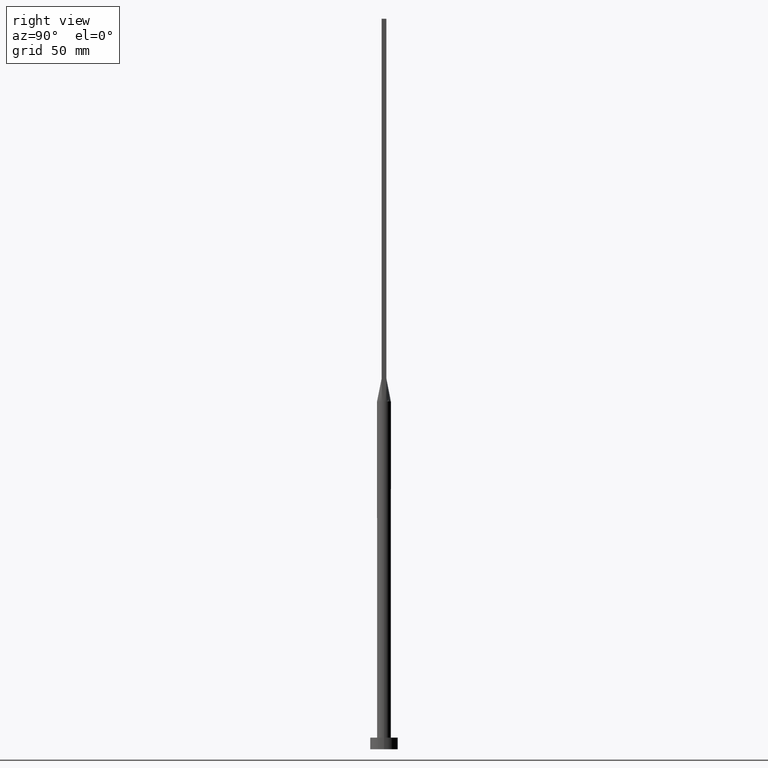
[diagram: clean part render]
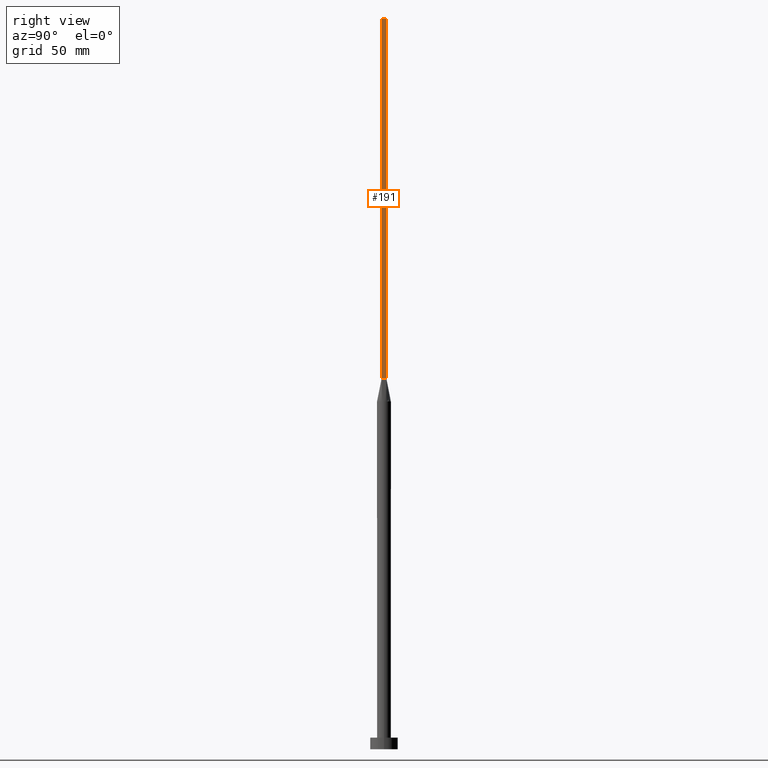
[diagram: same view with one face highlighted and labeled with its STEP entity id]
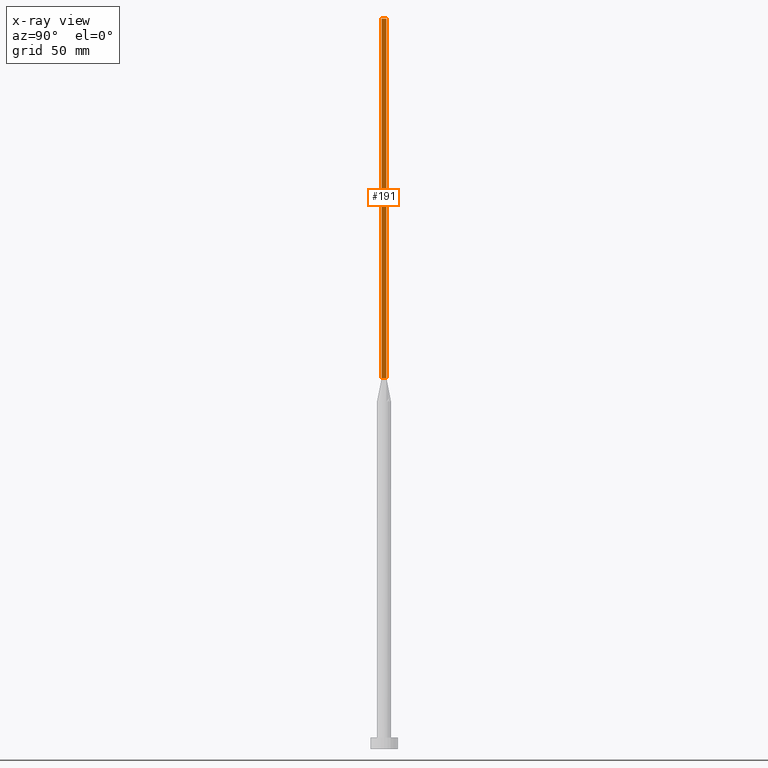
[diagram: x-ray of the same camera — body ghosted, the highlighted face saturated]
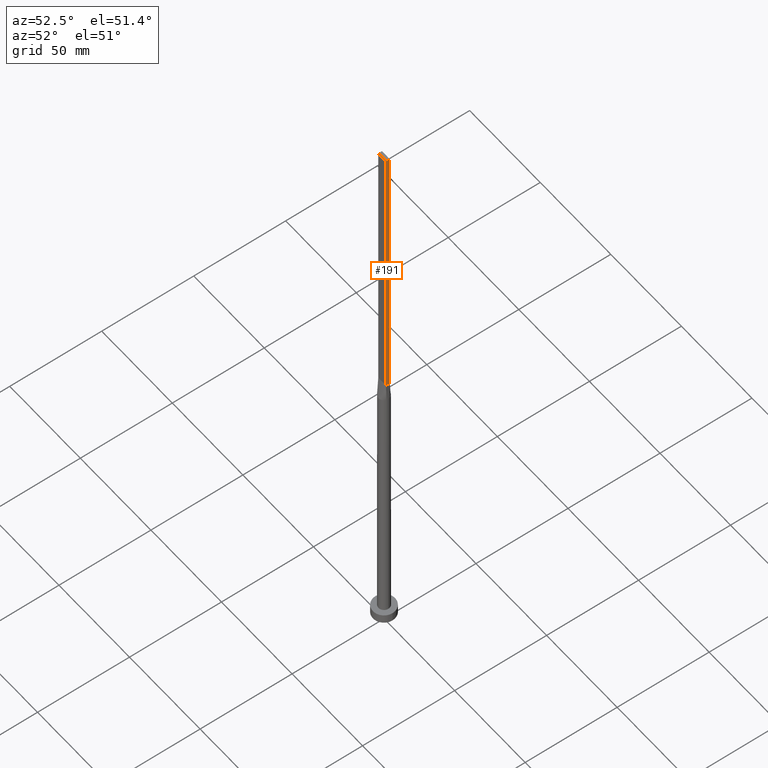
[diagram: same view with one face highlighted and labeled with its STEP entity id]
A machine part, right view. The second image highlights one B-rep face of the part: STEP entity #191.
The next image is the same camera in x-ray: the body ghosted, the highlighted face saturated — about 0% of this face is hidden behind the body in this view.
A second angle (auxiliary view) of the same face is appended — the face is thin or edge-on in the first view.
In plain terms, the highlighted planar face has unit normal (-1, -0, 0).
Its self-contained STEP definition (entity closure, byte-faithful):
#9 = DIRECTION ( 'NONE',  ( -0.000000000000000000, -0.000000000000000000, -1.000000000000000000 ) ) ;
#40 = VERTEX_POINT ( 'NONE', #121 ) ;
#49 = CARTESIAN_POINT ( 'NONE',  ( 2.750000000000000000, -0.9999999999999997780, 315.0000000000000000 ) ) ;
#62 = EDGE_LOOP ( 'NONE', ( #66, #439, #155, #193 ) ) ;
#64 = AXIS2_PLACEMENT_3D ( 'NONE', #241, #289, #428 ) ;
#66 = ORIENTED_EDGE ( 'NONE', *, *, #420, .T. ) ;
#121 = CARTESIAN_POINT ( 'NONE',  ( 2.749999999999999556, 1.000000000000000000, 160.0000000000000000 ) ) ;
#150 = VECTOR ( 'NONE', #221, 1000.000000000000000 ) ;
#154 = CARTESIAN_POINT ( 'NONE',  ( 2.750000000000000000, -0.9999999999999997780, 160.0000000000000000 ) ) ;
#155 = ORIENTED_EDGE ( 'NONE', *, *, #322, .F. ) ;
#158 = VERTEX_POINT ( 'NONE', #580 ) ;
#168 = VECTOR ( 'NONE', #422, 1000.000000000000000 ) ;
#174 = LINE ( 'NONE', #459, #519 ) ;
#178 = EDGE_CURVE ( 'NONE', #158, #312, #539, .T. ) ;
#191 = ADVANCED_FACE ( 'NONE', ( #513 ), #546, .F. ) ;
#193 = ORIENTED_EDGE ( 'NONE', *, *, #178, .T. ) ;
#221 = DIRECTION ( 'NONE',  ( -0.000000000000000000, -0.000000000000000000, -1.000000000000000000 ) ) ;
#234 = CARTESIAN_POINT ( 'NONE',  ( 2.750000000000000000, -0.9999999999999997780, 315.0000000000000000 ) ) ;
#236 = VERTEX_POINT ( 'NONE', #280 ) ;
#241 = CARTESIAN_POINT ( 'NONE',  ( 2.750000000000000000, -0.9999999999999997780, 315.0000000000000000 ) ) ;
#266 = VECTOR ( 'NONE', #425, 1000.000000000000000 ) ;
#280 = CARTESIAN_POINT ( 'NONE',  ( 2.749999999999999556, 1.000000000000000000, 315.0000000000000000 ) ) ;
#289 = DIRECTION ( 'NONE',  ( -1.000000000000000000, -2.168404344971009115E-16, 0.000000000000000000 ) ) ;
#312 = VERTEX_POINT ( 'NONE', #154 ) ;
#322 = EDGE_CURVE ( 'NONE', #158, #236, #460, .T. ) ;
#381 = EDGE_CURVE ( 'NONE', #236, #40, #174, .T. ) ;
#420 = EDGE_CURVE ( 'NONE', #312, #40, #521, .T. ) ;
#422 = DIRECTION ( 'NONE',  ( -2.168404344971008868E-16, 1.000000000000000000, 0.000000000000000000 ) ) ;
#425 = DIRECTION ( 'NONE',  ( -2.168404344971008868E-16, 1.000000000000000000, -0.000000000000000000 ) ) ;
#428 = DIRECTION ( 'NONE',  ( 2.168404344971009115E-16, -1.000000000000000000, 0.000000000000000000 ) ) ;
#433 = CARTESIAN_POINT ( 'NONE',  ( 2.749999999999999556, 1.000000000000000000, 160.0000000000000000 ) ) ;
#439 = ORIENTED_EDGE ( 'NONE', *, *, #381, .F. ) ;
#459 = CARTESIAN_POINT ( 'NONE',  ( 2.749999999999999556, 1.000000000000000000, 315.0000000000000000 ) ) ;
#460 = LINE ( 'NONE', #234, #168 ) ;
#513 = FACE_OUTER_BOUND ( 'NONE', #62, .T. ) ;
#519 = VECTOR ( 'NONE', #9, 1000.000000000000000 ) ;
#521 = LINE ( 'NONE', #433, #266 ) ;
#539 = LINE ( 'NONE', #49, #150 ) ;
#546 = PLANE ( 'NONE',  #64 ) ;
#580 = CARTESIAN_POINT ( 'NONE',  ( 2.750000000000000000, -0.9999999999999997780, 315.0000000000000000 ) ) ;